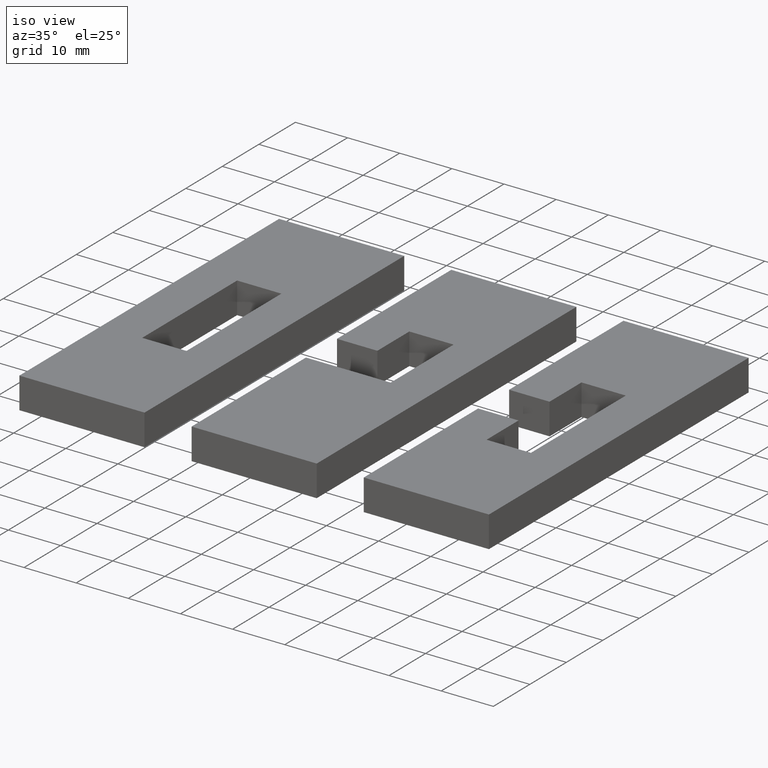
[diagram: clean part render]
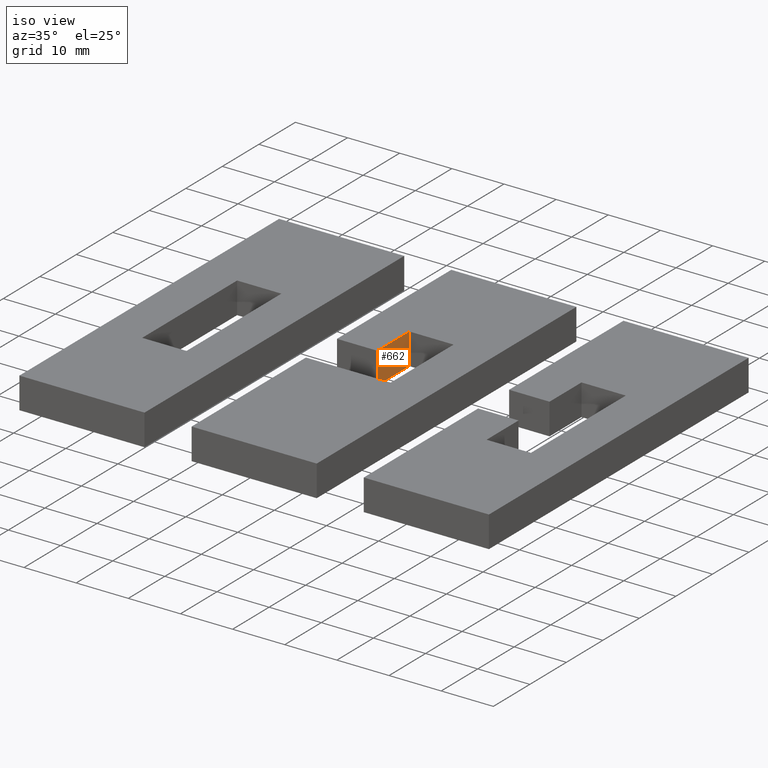
[diagram: same view with one face highlighted and labeled with its STEP entity id]
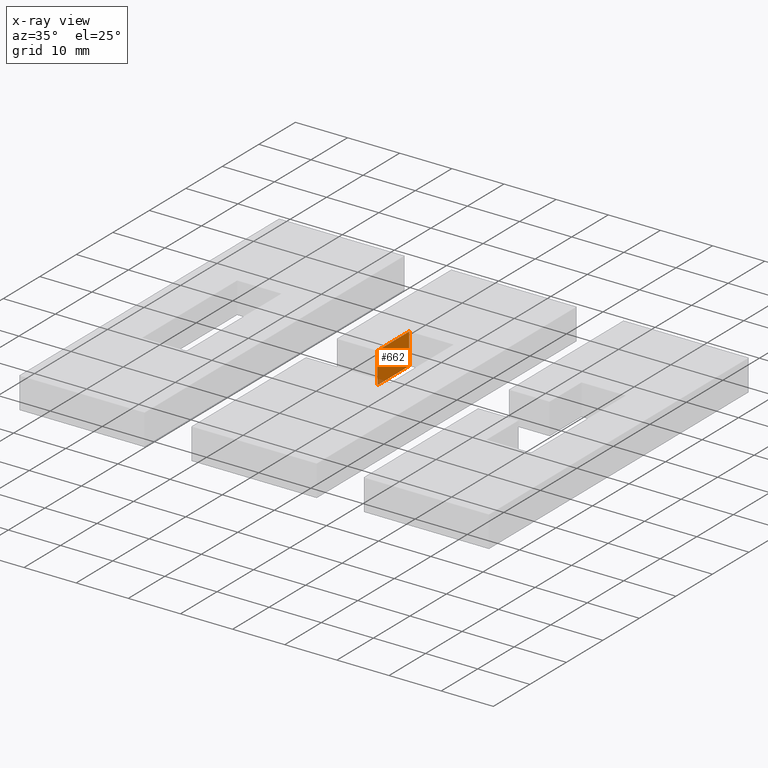
[diagram: x-ray of the same camera — body ghosted, the highlighted face saturated]
A machine part, iso view. The second image highlights one B-rep face of the part: STEP entity #662.
The next image is the same camera in x-ray: the body ghosted, the highlighted face saturated — about 2% of this face is hidden behind the body in this view.
In plain terms, the highlighted planar face has unit normal (-1, 0, 0).
Its self-contained STEP definition (entity closure, byte-faithful):
#140=ORIENTED_EDGE('',*,*,#260,.T.);
#141=ORIENTED_EDGE('',*,*,#243,.T.);
#142=ORIENTED_EDGE('',*,*,#261,.F.);
#143=ORIENTED_EDGE('',*,*,#248,.F.);
#243=EDGE_CURVE('',#321,#320,#393,.T.);
#248=EDGE_CURVE('',#324,#325,#398,.T.);
#260=EDGE_CURVE('',#324,#321,#410,.T.);
#261=EDGE_CURVE('',#325,#320,#411,.T.);
#320=VERTEX_POINT('',#1014);
#321=VERTEX_POINT('',#1016);
#324=VERTEX_POINT('',#1024);
#325=VERTEX_POINT('',#1026);
#393=LINE('',#1015,#483);
#398=LINE('',#1025,#488);
#410=LINE('',#1049,#500);
#411=LINE('',#1051,#501);
#483=VECTOR('',#830,1.);
#488=VECTOR('',#837,1.);
#500=VECTOR('',#863,1.);
#501=VECTOR('',#866,1.);
#550=EDGE_LOOP('',(#140,#141,#142,#143));
#588=FACE_BOUND('',#550,.T.);
#626=PLANE('',#734);
#662=ADVANCED_FACE('',(#588),#626,.F.);
#734=AXIS2_PLACEMENT_3D('',#1050,#864,#865);
#830=DIRECTION('',(0.,-1.,0.));
#837=DIRECTION('',(0.,-1.,0.));
#863=DIRECTION('',(0.,0.,1.));
#864=DIRECTION('',(-1.,0.,0.));
#865=DIRECTION('',(0.,0.,1.));
#866=DIRECTION('',(0.,0.,1.));
#1014=CARTESIAN_POINT('',(0.02877,0.00425,0.006));
#1015=CARTESIAN_POINT('',(0.02877,0.008625,0.006));
#1016=CARTESIAN_POINT('',(0.02877,0.013,0.006));
#1024=CARTESIAN_POINT('',(0.02877,0.013,-6.93889390390723E-18));
#1025=CARTESIAN_POINT('',(0.02877,0.,0.));
#1026=CARTESIAN_POINT('',(0.02877,0.00425,-6.93889390390723E-18));
#1049=CARTESIAN_POINT('',(0.02877,0.013,-0.0194));
#1050=CARTESIAN_POINT('',(0.02877,0.008625,-0.0194));
#1051=CARTESIAN_POINT('',(0.02877,0.00425,-0.0194));